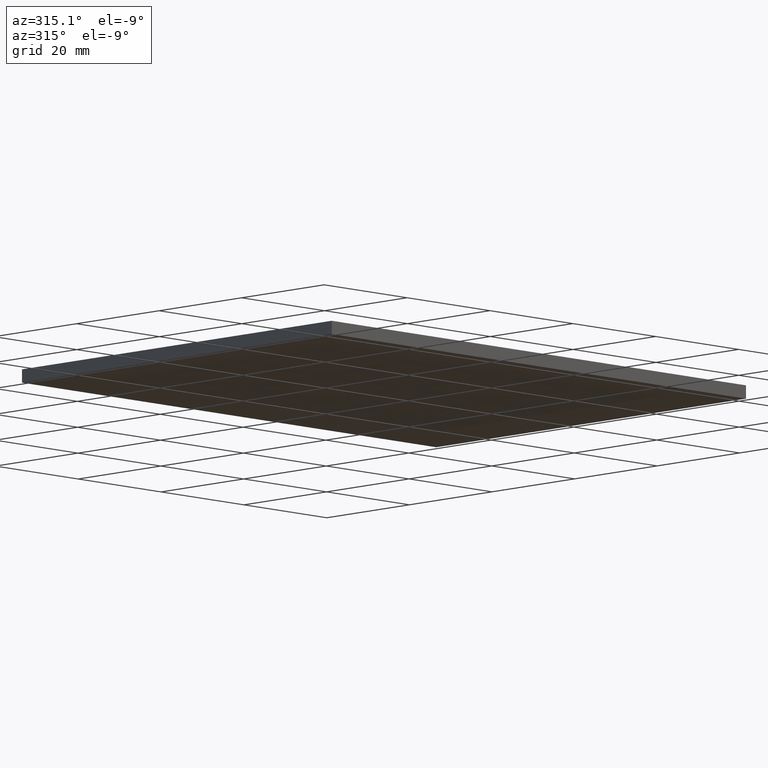
[diagram: clean part render]
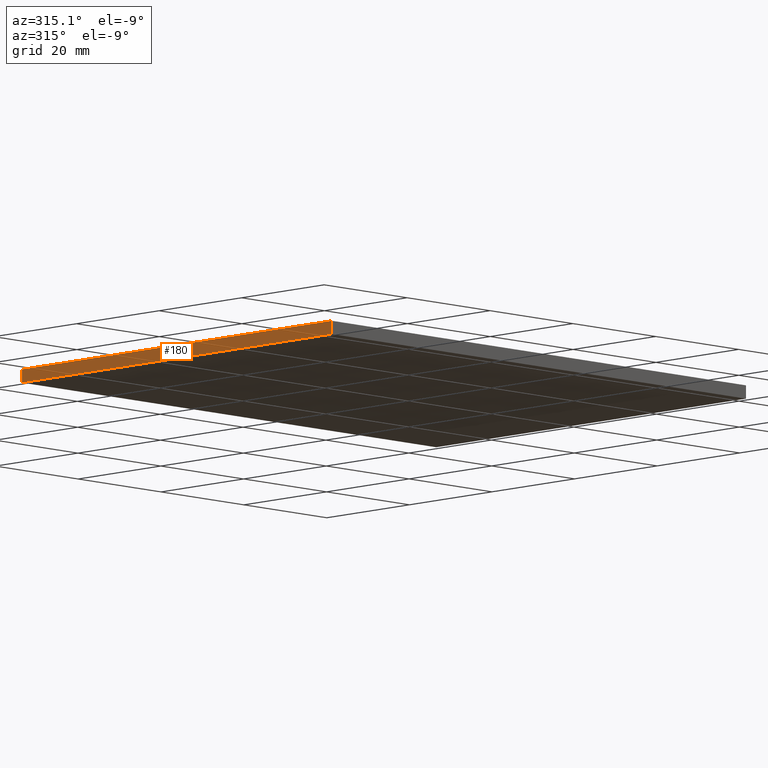
[diagram: same view with one face highlighted and labeled with its STEP entity id]
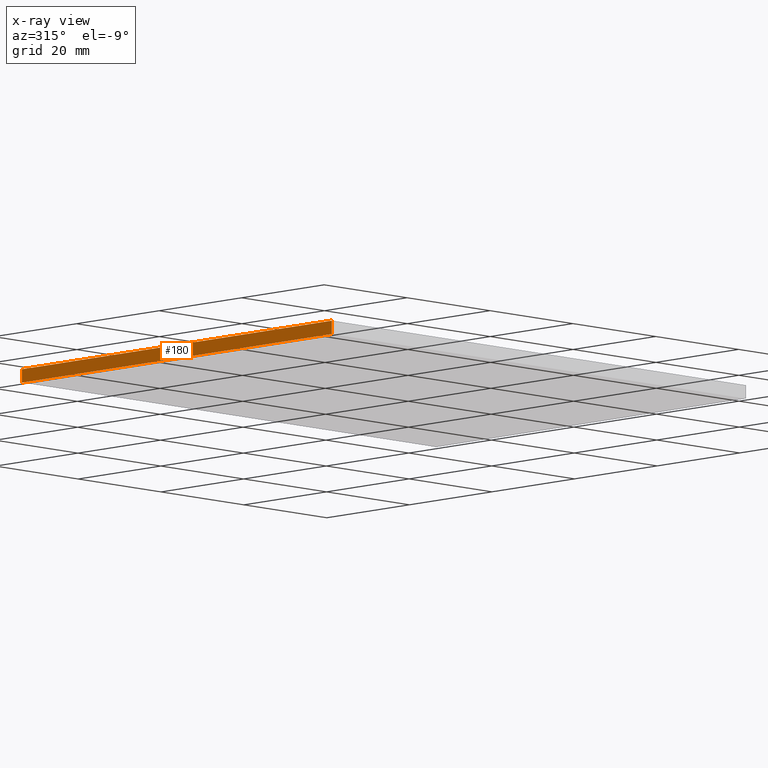
[diagram: x-ray of the same camera — body ghosted, the highlighted face saturated]
A machine part, auxiliary view. The second image highlights one B-rep face of the part: STEP entity #180.
The next image is the same camera in x-ray: the body ghosted, the highlighted face saturated — about 0% of this face is hidden behind the body in this view.
In plain terms, the highlighted planar face has unit normal (1, 0.0005, -0).
Its self-contained STEP definition (entity closure, byte-faithful):
#3 = ORIENTED_EDGE ( 'NONE', *, *, #14, .T. ) ;
#7 = CARTESIAN_POINT ( 'NONE',  ( 167.2299678845673700, 160.6264836690531600, 2.299999999999999800 ) ) ;
#14 = EDGE_CURVE ( 'NONE', #100, #121, #64, .T. ) ;
#20 = VECTOR ( 'NONE', #115, 999.9999999999998900 ) ;
#24 = EDGE_CURVE ( 'NONE', #33, #159, #72, .T. ) ;
#28 = DIRECTION ( 'NONE',  ( -0.0004781688540799851800, 0.9999998856772670500, 0.0000000000000000000 ) ) ;
#29 = CARTESIAN_POINT ( 'NONE',  ( 167.2299678845673700, 160.6264836690531600, 2.299999999999999800 ) ) ;
#31 = CARTESIAN_POINT ( 'NONE',  ( 167.2299678845673700, 160.6264836690531600, 2.299999999999999800 ) ) ;
#33 = VERTEX_POINT ( 'NONE', #144 ) ;
#34 = VECTOR ( 'NONE', #82, 1000.000000000000000 ) ;
#64 = LINE ( 'NONE', #7, #197 ) ;
#72 = LINE ( 'NONE', #176, #34 ) ;
#75 = LINE ( 'NONE', #189, #139 ) ;
#76 = FACE_OUTER_BOUND ( 'NONE', #190, .T. ) ;
#82 = DIRECTION ( 'NONE',  ( -0.0000000000000000000, -0.0000000000000000000, -1.000000000000000000 ) ) ;
#86 = CARTESIAN_POINT ( 'NONE',  ( 167.2299678845673700, 160.6264836690531600, 2.299999999999999800 ) ) ;
#88 = ORIENTED_EDGE ( 'NONE', *, *, #116, .T. ) ;
#92 = LINE ( 'NONE', #29, #20 ) ;
#97 = AXIS2_PLACEMENT_3D ( 'NONE', #31, #166, #28 ) ;
#100 = VERTEX_POINT ( 'NONE', #86 ) ;
#105 = DIRECTION ( 'NONE',  ( 0.0004781688540799851800, -0.9999998856772670500, 0.0000000000000000000 ) ) ;
#115 = DIRECTION ( 'NONE',  ( 0.0004781688540799851800, -0.9999998856772670500, 0.0000000000000000000 ) ) ;
#116 = EDGE_CURVE ( 'NONE', #121, #159, #75, .T. ) ;
#121 = VERTEX_POINT ( 'NONE', #136 ) ;
#126 = ORIENTED_EDGE ( 'NONE', *, *, #145, .F. ) ;
#128 = ORIENTED_EDGE ( 'NONE', *, *, #24, .F. ) ;
#136 = CARTESIAN_POINT ( 'NONE',  ( 167.2299678845673700, 160.6264836690531600, 0.0000000000000000000 ) ) ;
#139 = VECTOR ( 'NONE', #105, 999.9999999999998900 ) ;
#144 = CARTESIAN_POINT ( 'NONE',  ( 167.2658305527232900, 85.62648366905320100, 2.299999999999999800 ) ) ;
#145 = EDGE_CURVE ( 'NONE', #100, #33, #92, .T. ) ;
#159 = VERTEX_POINT ( 'NONE', #164 ) ;
#161 = DIRECTION ( 'NONE',  ( -0.0000000000000000000, -0.0000000000000000000, -1.000000000000000000 ) ) ;
#164 = CARTESIAN_POINT ( 'NONE',  ( 167.2658305527232900, 85.62648366905320100, 0.0000000000000000000 ) ) ;
#166 = DIRECTION ( 'NONE',  ( 0.9999998856772670500, 0.0004781688540799851800, -0.0000000000000000000 ) ) ;
#176 = CARTESIAN_POINT ( 'NONE',  ( 167.2658305527232900, 85.62648366905320100, 2.299999999999999800 ) ) ;
#180 = ADVANCED_FACE ( 'NONE', ( #76 ), #181, .F. ) ;
#181 = PLANE ( 'NONE',  #97 ) ;
#189 = CARTESIAN_POINT ( 'NONE',  ( 167.2299678845673700, 160.6264836690531600, 0.0000000000000000000 ) ) ;
#190 = EDGE_LOOP ( 'NONE', ( #88, #128, #126, #3 ) ) ;
#197 = VECTOR ( 'NONE', #161, 1000.000000000000000 ) ;